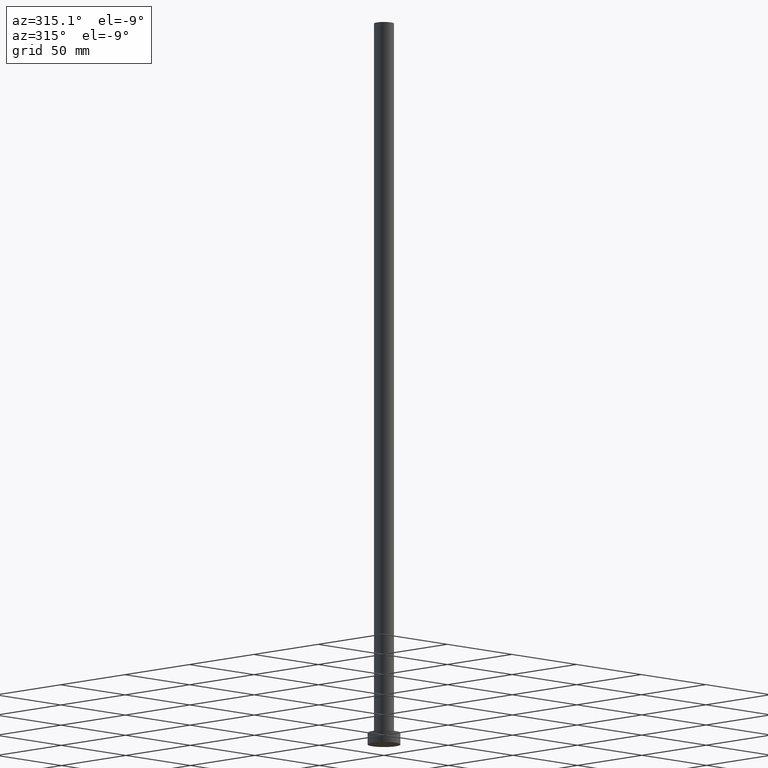
[diagram: clean part render]
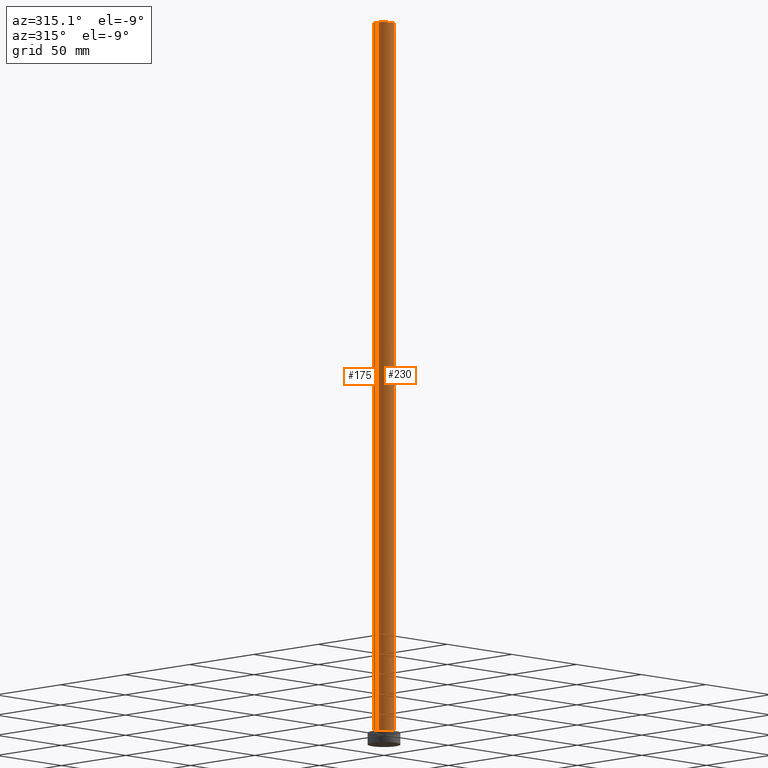
[diagram: same view with one multi-face feature highlighted, each face labeled with its STEP entity id]
A machine part, auxiliary view. The highlighted faces form ONE feature: a constant-radius fillet chain: 2 tangent blend faces with common blend radius 5.5 mm. The faces share edges in the B-rep.
Their STEP definitions:
[1] entity #175 (Cylinder):
#4 = CARTESIAN_POINT ( 'NONE',  ( 5.500000000000000000, 6.735557395310442023E-16, 400.0000000000000000 ) ) ;
#18 = AXIS2_PLACEMENT_3D ( 'NONE', #116, #239, #103 ) ;
#20 = EDGE_CURVE ( 'NONE', #70, #63, #139, .T. ) ;
#22 = EDGE_CURVE ( 'NONE', #193, #70, #34, .T. ) ;
#34 = LINE ( 'NONE', #194, #254 ) ;
#43 = DIRECTION ( 'NONE',  ( -0.000000000000000000, -0.000000000000000000, -1.000000000000000000 ) ) ;
#50 = DIRECTION ( 'NONE',  ( 1.000000000000000000, 0.000000000000000000, 0.000000000000000000 ) ) ;
#52 = CARTESIAN_POINT ( 'NONE',  ( -5.500000000000000000, 0.000000000000000000, 400.0000000000000000 ) ) ;
#54 = VERTEX_POINT ( 'NONE', #52 ) ;
#59 = CARTESIAN_POINT ( 'NONE',  ( 0.000000000000000000, 0.000000000000000000, 400.0000000000000000 ) ) ;
#63 = VERTEX_POINT ( 'NONE', #96 ) ;
#70 = VERTEX_POINT ( 'NONE', #76 ) ;
#76 = CARTESIAN_POINT ( 'NONE',  ( 5.500000000000000000, 6.735557395310442023E-16, 6.500000000000000000 ) ) ;
#88 = CARTESIAN_POINT ( 'NONE',  ( 0.000000000000000000, 0.000000000000000000, 6.500000000000000000 ) ) ;
#91 = DIRECTION ( 'NONE',  ( -0.000000000000000000, -0.000000000000000000, -1.000000000000000000 ) ) ;
#96 = CARTESIAN_POINT ( 'NONE',  ( -5.500000000000000000, 0.000000000000000000, 6.500000000000000000 ) ) ;
#98 = CYLINDRICAL_SURFACE ( 'NONE', #181, 5.500000000000000000 ) ;
#100 = AXIS2_PLACEMENT_3D ( 'NONE', #88, #154, #50 ) ;
#101 = CARTESIAN_POINT ( 'NONE',  ( -5.500000000000000000, 0.000000000000000000, 400.0000000000000000 ) ) ;
#103 = DIRECTION ( 'NONE',  ( 1.000000000000000000, 0.000000000000000000, 0.000000000000000000 ) ) ;
#116 = CARTESIAN_POINT ( 'NONE',  ( 0.000000000000000000, 0.000000000000000000, 400.0000000000000000 ) ) ;
#119 = DIRECTION ( 'NONE',  ( -0.000000000000000000, -0.000000000000000000, -1.000000000000000000 ) ) ;
#139 = CIRCLE ( 'NONE', #100, 5.500000000000000000 ) ;
#154 = DIRECTION ( 'NONE',  ( 0.000000000000000000, 0.000000000000000000, 1.000000000000000000 ) ) ;
#175 = ADVANCED_FACE ( 'NONE', ( #220 ), #98, .T. ) ;
#176 = ORIENTED_EDGE ( 'NONE', *, *, #188, .F. ) ;
#181 = AXIS2_PLACEMENT_3D ( 'NONE', #59, #43, #184 ) ;
#184 = DIRECTION ( 'NONE',  ( -1.000000000000000000, 0.000000000000000000, 0.000000000000000000 ) ) ;
#188 = EDGE_CURVE ( 'NONE', #193, #54, #212, .T. ) ;
#193 = VERTEX_POINT ( 'NONE', #4 ) ;
#194 = CARTESIAN_POINT ( 'NONE',  ( 5.500000000000000000, 6.735557395310442023E-16, 400.0000000000000000 ) ) ;
#196 = ORIENTED_EDGE ( 'NONE', *, *, #200, .F. ) ;
#200 = EDGE_CURVE ( 'NONE', #54, #63, #204, .T. ) ;
#204 = LINE ( 'NONE', #101, #227 ) ;
#212 = CIRCLE ( 'NONE', #18, 5.500000000000000000 ) ;
#220 = FACE_OUTER_BOUND ( 'NONE', #244, .T. ) ;
#223 = ORIENTED_EDGE ( 'NONE', *, *, #20, .T. ) ;
#227 = VECTOR ( 'NONE', #119, 1000.000000000000000 ) ;
#232 = ORIENTED_EDGE ( 'NONE', *, *, #22, .T. ) ;
#239 = DIRECTION ( 'NONE',  ( 0.000000000000000000, 0.000000000000000000, 1.000000000000000000 ) ) ;
#244 = EDGE_LOOP ( 'NONE', ( #176, #232, #223, #196 ) ) ;
#254 = VECTOR ( 'NONE', #91, 1000.000000000000000 ) ;
[2] entity #230 (Cylinder):
#4 = CARTESIAN_POINT ( 'NONE',  ( 5.500000000000000000, 6.735557395310442023E-16, 400.0000000000000000 ) ) ;
#6 = CARTESIAN_POINT ( 'NONE',  ( 0.000000000000000000, 0.000000000000000000, 400.0000000000000000 ) ) ;
#16 = ORIENTED_EDGE ( 'NONE', *, *, #221, .T. ) ;
#22 = EDGE_CURVE ( 'NONE', #193, #70, #34, .T. ) ;
#23 = DIRECTION ( 'NONE',  ( 0.000000000000000000, 0.000000000000000000, 1.000000000000000000 ) ) ;
#25 = CARTESIAN_POINT ( 'NONE',  ( 0.000000000000000000, 0.000000000000000000, 6.500000000000000000 ) ) ;
#28 = DIRECTION ( 'NONE',  ( 1.000000000000000000, 0.000000000000000000, 0.000000000000000000 ) ) ;
#34 = LINE ( 'NONE', #194, #254 ) ;
#35 = CIRCLE ( 'NONE', #115, 5.500000000000000000 ) ;
#38 = CIRCLE ( 'NONE', #117, 5.500000000000000000 ) ;
#44 = EDGE_CURVE ( 'NONE', #54, #193, #38, .T. ) ;
#52 = CARTESIAN_POINT ( 'NONE',  ( -5.500000000000000000, 0.000000000000000000, 400.0000000000000000 ) ) ;
#53 = DIRECTION ( 'NONE',  ( 1.000000000000000000, 0.000000000000000000, 0.000000000000000000 ) ) ;
#54 = VERTEX_POINT ( 'NONE', #52 ) ;
#63 = VERTEX_POINT ( 'NONE', #96 ) ;
#70 = VERTEX_POINT ( 'NONE', #76 ) ;
#74 = DIRECTION ( 'NONE',  ( 0.000000000000000000, 0.000000000000000000, 1.000000000000000000 ) ) ;
#76 = CARTESIAN_POINT ( 'NONE',  ( 5.500000000000000000, 6.735557395310442023E-16, 6.500000000000000000 ) ) ;
#85 = DIRECTION ( 'NONE',  ( -0.000000000000000000, -0.000000000000000000, -1.000000000000000000 ) ) ;
#91 = DIRECTION ( 'NONE',  ( -0.000000000000000000, -0.000000000000000000, -1.000000000000000000 ) ) ;
#96 = CARTESIAN_POINT ( 'NONE',  ( -5.500000000000000000, 0.000000000000000000, 6.500000000000000000 ) ) ;
#101 = CARTESIAN_POINT ( 'NONE',  ( -5.500000000000000000, 0.000000000000000000, 400.0000000000000000 ) ) ;
#110 = EDGE_LOOP ( 'NONE', ( #134, #123, #133, #16 ) ) ;
#115 = AXIS2_PLACEMENT_3D ( 'NONE', #25, #23, #28 ) ;
#117 = AXIS2_PLACEMENT_3D ( 'NONE', #250, #74, #53 ) ;
#119 = DIRECTION ( 'NONE',  ( -0.000000000000000000, -0.000000000000000000, -1.000000000000000000 ) ) ;
#123 = ORIENTED_EDGE ( 'NONE', *, *, #44, .F. ) ;
#125 = DIRECTION ( 'NONE',  ( -1.000000000000000000, 0.000000000000000000, 0.000000000000000000 ) ) ;
#133 = ORIENTED_EDGE ( 'NONE', *, *, #200, .T. ) ;
#134 = ORIENTED_EDGE ( 'NONE', *, *, #22, .F. ) ;
#150 = CYLINDRICAL_SURFACE ( 'NONE', #174, 5.500000000000000000 ) ;
#174 = AXIS2_PLACEMENT_3D ( 'NONE', #6, #85, #125 ) ;
#189 = FACE_OUTER_BOUND ( 'NONE', #110, .T. ) ;
#193 = VERTEX_POINT ( 'NONE', #4 ) ;
#194 = CARTESIAN_POINT ( 'NONE',  ( 5.500000000000000000, 6.735557395310442023E-16, 400.0000000000000000 ) ) ;
#200 = EDGE_CURVE ( 'NONE', #54, #63, #204, .T. ) ;
#204 = LINE ( 'NONE', #101, #227 ) ;
#221 = EDGE_CURVE ( 'NONE', #63, #70, #35, .T. ) ;
#227 = VECTOR ( 'NONE', #119, 1000.000000000000000 ) ;
#230 = ADVANCED_FACE ( 'NONE', ( #189 ), #150, .T. ) ;
#250 = CARTESIAN_POINT ( 'NONE',  ( 0.000000000000000000, 0.000000000000000000, 400.0000000000000000 ) ) ;
#254 = VECTOR ( 'NONE', #91, 1000.000000000000000 ) ;